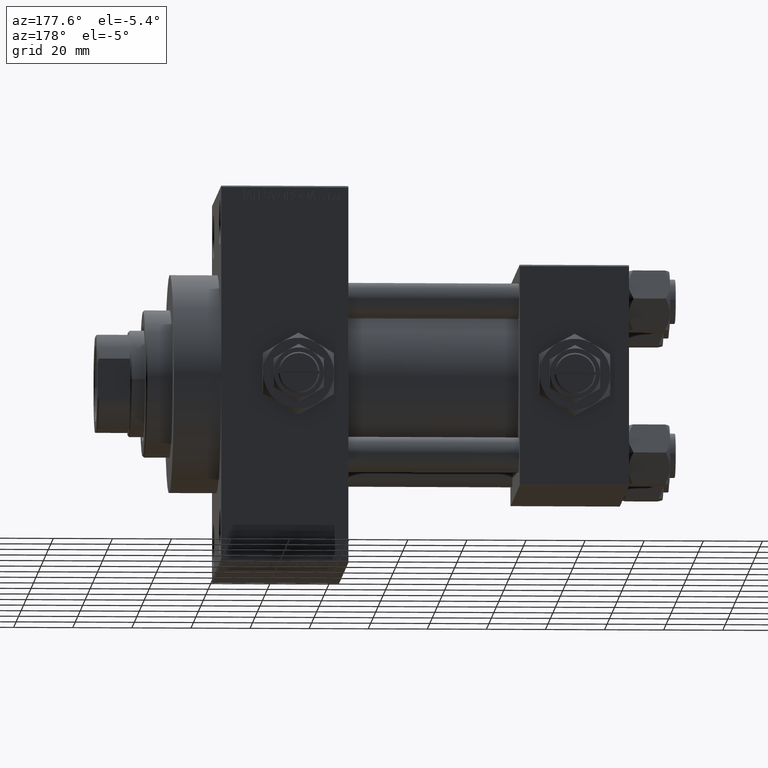
[diagram: clean part render]
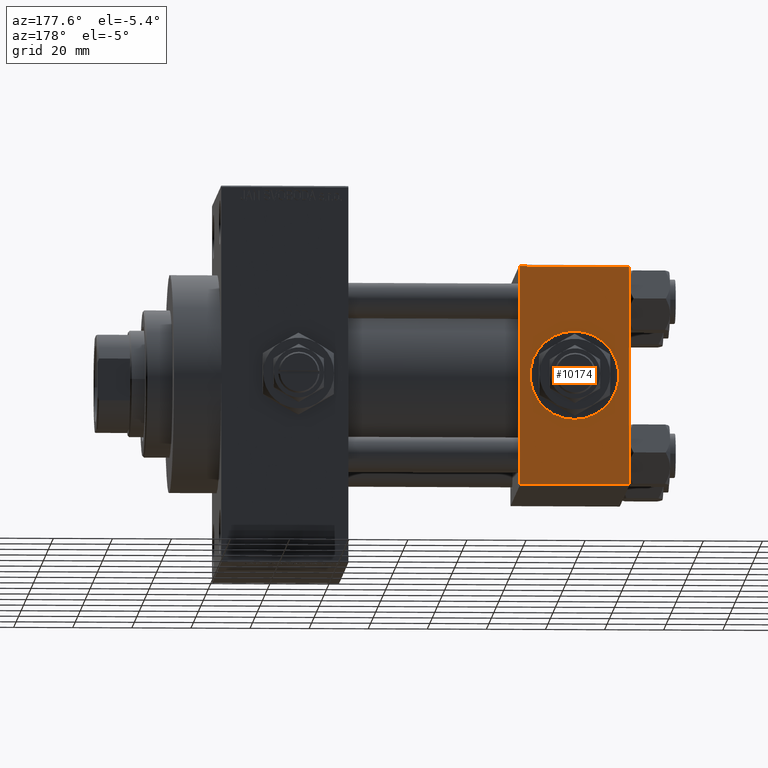
[diagram: same view with one face highlighted and labeled with its STEP entity id]
A machine part, auxiliary view. The second image highlights one B-rep face of the part: STEP entity #10174.
In plain terms, the highlighted planar face has unit normal (0, 1, 0).
Its self-contained STEP definition (entity closure, byte-faithful):
#76 = EDGE_CURVE ( 'NONE', #38213, #13925, #26737, .T. ) ;
#201 = VECTOR ( 'NONE', #3284, 1000.000000000000000 ) ;
#455 = VERTEX_POINT ( 'NONE', #26854 ) ;
#521 = DIRECTION ( 'NONE',  ( 0.000000000000000000, 0.000000000000000000, 1.000000000000000000 ) ) ;
#665 = ORIENTED_EDGE ( 'NONE', *, *, #15119, .F. ) ;
#927 = ORIENTED_EDGE ( 'NONE', *, *, #6019, .T. ) ;
#1185 = VERTEX_POINT ( 'NONE', #22697 ) ;
#1503 = DIRECTION ( 'NONE',  ( 0.000000000000000000, -0.000000000000000000, 1.000000000000000000 ) ) ;
#3284 = DIRECTION ( 'NONE',  ( 1.000000000000000000, 0.000000000000000000, 0.000000000000000000 ) ) ;
#4525 = CARTESIAN_POINT ( 'NONE',  ( 0.000000000000000000, 37.49999999999999289, 37.50000000000000000 ) ) ;
#4527 = DIRECTION ( 'NONE',  ( 0.000000000000000000, 1.000000000000000000, 0.000000000000000000 ) ) ;
#6019 = EDGE_CURVE ( 'NONE', #455, #38700, #27397, .T. ) ;
#6194 = ORIENTED_EDGE ( 'NONE', *, *, #43677, .F. ) ;
#7295 = DIRECTION ( 'NONE',  ( -1.000000000000000000, 0.000000000000000000, 0.000000000000000000 ) ) ;
#7328 = CARTESIAN_POINT ( 'NONE',  ( 0.000000000000000000, 37.49999999999999289, 37.00000000000000000 ) ) ;
#7798 = CARTESIAN_POINT ( 'NONE',  ( 37.00000000000000000, 37.49999999999999289, -36.99999999999998579 ) ) ;
#9883 = EDGE_CURVE ( 'NONE', #38213, #455, #44918, .T. ) ;
#10174 = ADVANCED_FACE ( 'NONE', ( #16469, #47363 ), #16963, .T. ) ;
#11322 = CARTESIAN_POINT ( 'NONE',  ( 0.000000000000000000, 37.49999999999999289, -36.99999999999998579 ) ) ;
#11501 = DIRECTION ( 'NONE',  ( 0.000000000000000000, 0.000000000000000000, -1.000000000000000000 ) ) ;
#13925 = VERTEX_POINT ( 'NONE', #11322 ) ;
#14659 = CIRCLE ( 'NONE', #48883, 15.00000000000000178 ) ;
#15119 = EDGE_CURVE ( 'NONE', #1185, #46324, #14659, .T. ) ;
#15504 = CARTESIAN_POINT ( 'NONE',  ( 18.50000000000000000, 37.49999999999999289, 0.000000000000000000 ) ) ;
#15943 = VECTOR ( 'NONE', #46567, 1000.000000000000000 ) ;
#16469 = FACE_BOUND ( 'NONE', #30704, .T. ) ;
#16963 = PLANE ( 'NONE',  #41583 ) ;
#17497 = EDGE_CURVE ( 'NONE', #38700, #13925, #33738, .T. ) ;
#19461 = ORIENTED_EDGE ( 'NONE', *, *, #17497, .T. ) ;
#21873 = CARTESIAN_POINT ( 'NONE',  ( 37.00000000000000000, 37.49999999999999289, -36.99999999999998579 ) ) ;
#22697 = CARTESIAN_POINT ( 'NONE',  ( 18.50000000000000000, 37.49999999999999289, 15.00000000000000178 ) ) ;
#24208 = CARTESIAN_POINT ( 'NONE',  ( 37.00000000000000000, 37.49999999999999289, 37.50000000000000000 ) ) ;
#24917 = EDGE_LOOP ( 'NONE', ( #927, #19461, #29837, #43363 ) ) ;
#26737 = LINE ( 'NONE', #4525, #33358 ) ;
#26854 = CARTESIAN_POINT ( 'NONE',  ( 37.00000000000000000, 37.49999999999999289, 37.00000000000000000 ) ) ;
#27397 = LINE ( 'NONE', #31375, #15943 ) ;
#28427 = DIRECTION ( 'NONE',  ( -0.000000000000000000, 1.000000000000000000, 0.000000000000000000 ) ) ;
#29837 = ORIENTED_EDGE ( 'NONE', *, *, #76, .F. ) ;
#30691 = CARTESIAN_POINT ( 'NONE',  ( 18.50000000000000000, 37.49999999999999289, 0.000000000000000000 ) ) ;
#30698 = VECTOR ( 'NONE', #7295, 1000.000000000000000 ) ;
#30704 = EDGE_LOOP ( 'NONE', ( #665, #6194 ) ) ;
#31375 = CARTESIAN_POINT ( 'NONE',  ( 37.00000000000000000, 37.49999999999999289, 37.50000000000000000 ) ) ;
#32969 = CIRCLE ( 'NONE', #39382, 15.00000000000000178 ) ;
#33358 = VECTOR ( 'NONE', #11501, 1000.000000000000000 ) ;
#33738 = LINE ( 'NONE', #7798, #30698 ) ;
#34671 = DIRECTION ( 'NONE',  ( 0.000000000000000000, 1.000000000000000000, 0.000000000000000000 ) ) ;
#35124 = CARTESIAN_POINT ( 'NONE',  ( 18.50000000000000355, 37.49999999999999289, -15.00000000000000178 ) ) ;
#38213 = VERTEX_POINT ( 'NONE', #7328 ) ;
#38700 = VERTEX_POINT ( 'NONE', #21873 ) ;
#39382 = AXIS2_PLACEMENT_3D ( 'NONE', #15504, #4527, #46147 ) ;
#41583 = AXIS2_PLACEMENT_3D ( 'NONE', #24208, #28427, #1503 ) ;
#43363 = ORIENTED_EDGE ( 'NONE', *, *, #9883, .T. ) ;
#43677 = EDGE_CURVE ( 'NONE', #46324, #1185, #32969, .T. ) ;
#44918 = LINE ( 'NONE', #45165, #201 ) ;
#45165 = CARTESIAN_POINT ( 'NONE',  ( 37.00000000000000000, 37.49999999999999289, 37.00000000000000000 ) ) ;
#46147 = DIRECTION ( 'NONE',  ( 0.000000000000000000, 0.000000000000000000, 1.000000000000000000 ) ) ;
#46324 = VERTEX_POINT ( 'NONE', #35124 ) ;
#46567 = DIRECTION ( 'NONE',  ( 0.000000000000000000, 0.000000000000000000, -1.000000000000000000 ) ) ;
#47363 = FACE_OUTER_BOUND ( 'NONE', #24917, .T. ) ;
#48883 = AXIS2_PLACEMENT_3D ( 'NONE', #30691, #34671, #521 ) ;